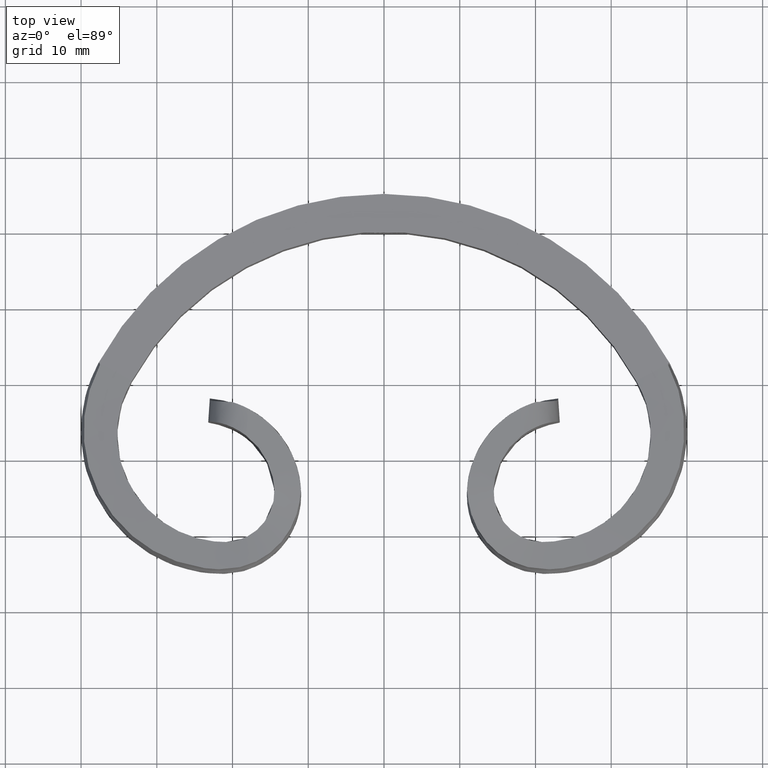
[diagram: clean part render]
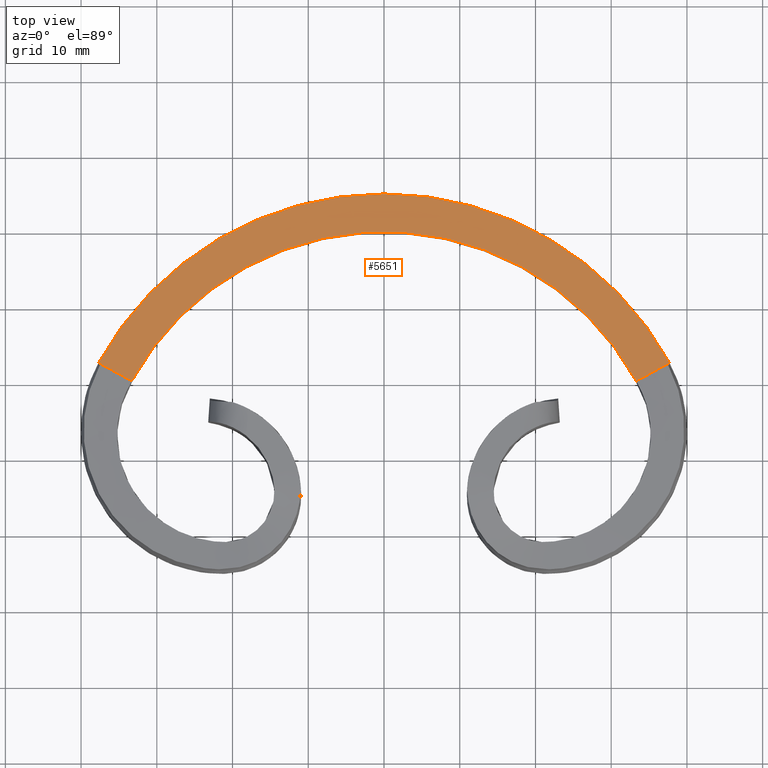
[diagram: same view with one face highlighted and labeled with its STEP entity id]
A machine part, top view. The second image highlights one B-rep face of the part: STEP entity #5651.
In plain terms, the highlighted planar face has unit normal (-0, 0, -1).
Its self-contained STEP definition (entity closure, byte-faithful):
#404 = CARTESIAN_POINT ( 'NONE',  ( -6.309924276795900825E-27, -17.99999999999999645, 6.000000000000000000 ) ) ;
#450 = VERTEX_POINT ( 'NONE', #9655 ) ;
#576 = DIRECTION ( 'NONE',  ( 0.8765587621685080322, -0.4812948539779050572, 3.469446951953613696E-16 ) ) ;
#703 = ORIENTED_EDGE ( 'NONE', *, *, #17137, .F. ) ;
#1033 = CARTESIAN_POINT ( 'NONE',  ( -37.63557457080444379, 2.672687015396279619, 6.000000000000001776 ) ) ;
#1154 = CARTESIAN_POINT ( 'NONE',  ( -33.30923296240330700, 0.2892044511603958923, 6.000000000000001776 ) ) ;
#1296 = EDGE_LOOP ( 'NONE', ( #12191, #14291, #16915, #4732, #14012, #14211, #10297, #703 ) ) ;
#1407 = CARTESIAN_POINT ( 'NONE',  ( -6.309924276795900825E-27, -17.99999999999999645, 6.000000000000001776 ) ) ;
#2259 = CARTESIAN_POINT ( 'NONE',  ( -16.08719172690877386, -7.872645241036678065, 6.000000000000000888 ) ) ;
#2386 = EDGE_CURVE ( 'NONE', #6521, #16668, #14050, .T. ) ;
#2579 = EDGE_CURVE ( 'NONE', #7389, #11345, #14552, .T. ) ;
#3385 = EDGE_CURVE ( 'NONE', #450, #8007, #4319, .T. ) ;
#3925 = EDGE_CURVE ( 'NONE', #16668, #13998, #9329, .T. ) ;
#3938 = CARTESIAN_POINT ( 'NONE',  ( -37.61627604079752274, 2.659793157594103175, 6.000000000000000888 ) ) ;
#4067 = DIRECTION ( 'NONE',  ( 1.660506388630500323E-28, 1.000000000000000000, 0.000000000000000000 ) ) ;
#4319 = CIRCLE ( 'NONE', #9024, 43.00000000000000000 ) ;
#4546 = EDGE_CURVE ( 'NONE', #15139, #7389, #5820, .T. ) ;
#4732 = ORIENTED_EDGE ( 'NONE', *, *, #2579, .T. ) ;
#4981 = FACE_OUTER_BOUND ( 'NONE', #1296, .T. ) ;
#5463 = CARTESIAN_POINT ( 'NONE',  ( 37.69202677324584272, 2.695678721049922899, 6.000000000000000000 ) ) ;
#5651 = ADVANCED_FACE ( 'NONE', ( #4981 ), #7362, .F. ) ;
#5820 = B_SPLINE_CURVE_WITH_KNOTS ( 'NONE', 3,
 ( #9251, #1033, #3938, #9810 ),
 .UNSPECIFIED., .F., .F.,
 ( 4, 4 ),
 ( 0.000000000000000000, 6.840030241147862619E-05 ),
 .UNSPECIFIED. ) ;
#6042 = CARTESIAN_POINT ( 'NONE',  ( 0.000000000000000000, 25.00000000000000355, 6.000000000000000888 ) ) ;
#6384 = CARTESIAN_POINT ( 'NONE',  ( -37.69002071778236740, 2.699331832045591462, 6.000000000000000000 ) ) ;
#6521 = VERTEX_POINT ( 'NONE', #13831 ) ;
#6531 = VECTOR ( 'NONE', #10854, 1000.000000000000114 ) ;
#7023 = VECTOR ( 'NONE', #576, 1000.000000000000000 ) ;
#7362 = PLANE ( 'NONE',  #13918 ) ;
#7389 = VERTEX_POINT ( 'NONE', #10454 ) ;
#7535 = VECTOR ( 'NONE', #11388, 1000.000000000000000 ) ;
#7854 = CARTESIAN_POINT ( 'NONE',  ( 37.59918516124347576, 2.644701887527421746, 6.000000000000000000 ) ) ;
#8007 = VERTEX_POINT ( 'NONE', #6384 ) ;
#8134 = CARTESIAN_POINT ( 'NONE',  ( 16.08719172690877386, -7.872645241036678065, 6.000000000000000888 ) ) ;
#8679 = DIRECTION ( 'NONE',  ( -0.000000000000000000, 0.000000000000000000, -1.000000000000000000 ) ) ;
#8733 = CARTESIAN_POINT ( 'NONE',  ( -37.69202677324584272, 2.695678721049922899, 6.000000000000000000 ) ) ;
#8796 = DIRECTION ( 'NONE',  ( -1.000000000000000000, 0.000000000000000000, 0.000000000000000000 ) ) ;
#9024 = AXIS2_PLACEMENT_3D ( 'NONE', #404, #14809, #11858 ) ;
#9251 = CARTESIAN_POINT ( 'NONE',  ( -37.65605386041944058, 2.682709155569411585, 6.000000000000000888 ) ) ;
#9329 = LINE ( 'NONE', #5463, #7535 ) ;
#9348 = CARTESIAN_POINT ( 'NONE',  ( 37.65605386041944058, 2.682709155569411585, 6.000000000000000888 ) ) ;
#9404 = CARTESIAN_POINT ( 'NONE',  ( 37.59918516124347576, 2.644701887527421746, 6.000000000000000000 ) ) ;
#9655 = CARTESIAN_POINT ( 'NONE',  ( 37.69002071778236740, 2.699331832045591462, 6.000000000000000000 ) ) ;
#9810 = CARTESIAN_POINT ( 'NONE',  ( -37.59918516124347576, 2.644701887527421746, 6.000000000000000000 ) ) ;
#10297 = ORIENTED_EDGE ( 'NONE', *, *, #2386, .F. ) ;
#10309 = LINE ( 'NONE', #8134, #6531 ) ;
#10454 = CARTESIAN_POINT ( 'NONE',  ( -37.59918516124347576, 2.644701887527421746, 6.000000000000000000 ) ) ;
#10854 = DIRECTION ( 'NONE',  ( -0.8982104855076903371, -0.4395656079859285859, 0.000000000000000000 ) ) ;
#11246 = DIRECTION ( 'NONE',  ( 0.000000000000000000, 0.000000000000000000, 1.000000000000000000 ) ) ;
#11345 = VERTEX_POINT ( 'NONE', #1154 ) ;
#11388 = DIRECTION ( 'NONE',  ( -0.8765587621685080322, -0.4812948539779050572, 3.469446951953613696E-16 ) ) ;
#11858 = DIRECTION ( 'NONE',  ( 1.467424250417651256E-28, 1.000000000000000000, 0.000000000000000000 ) ) ;
#12091 = LINE ( 'NONE', #2259, #16714 ) ;
#12191 = ORIENTED_EDGE ( 'NONE', *, *, #3385, .T. ) ;
#12196 = CARTESIAN_POINT ( 'NONE',  ( 37.61627604079752274, 2.659793157594103175, 6.000000000000000888 ) ) ;
#12214 = DIRECTION ( 'NONE',  ( 0.8982104855076903371, -0.4395656079859285859, 0.000000000000000000 ) ) ;
#12456 = EDGE_CURVE ( 'NONE', #13998, #11345, #13149, .T. ) ;
#12836 = CARTESIAN_POINT ( 'NONE',  ( -37.65605386041944058, 2.682709155569411585, 6.000000000000000888 ) ) ;
#12915 = AXIS2_PLACEMENT_3D ( 'NONE', #1407, #11246, #4067 ) ;
#12950 = CARTESIAN_POINT ( 'NONE',  ( 33.30923296240330700, 0.2892044511603958923, 6.000000000000001776 ) ) ;
#13149 = CIRCLE ( 'NONE', #12915, 38.00000000000000000 ) ;
#13831 = CARTESIAN_POINT ( 'NONE',  ( 37.65605386041944058, 2.682709155569411585, 6.000000000000000888 ) ) ;
#13918 = AXIS2_PLACEMENT_3D ( 'NONE', #6042, #8679, #8796 ) ;
#13998 = VERTEX_POINT ( 'NONE', #12950 ) ;
#14012 = ORIENTED_EDGE ( 'NONE', *, *, #12456, .F. ) ;
#14050 = B_SPLINE_CURVE_WITH_KNOTS ( 'NONE', 3,
 ( #9348, #14901, #12196, #7854 ),
 .UNSPECIFIED., .F., .F.,
 ( 4, 4 ),
 ( 0.000000000000000000, 6.840030241147862619E-05 ),
 .UNSPECIFIED. ) ;
#14211 = ORIENTED_EDGE ( 'NONE', *, *, #3925, .F. ) ;
#14291 = ORIENTED_EDGE ( 'NONE', *, *, #14939, .T. ) ;
#14552 = LINE ( 'NONE', #8733, #7023 ) ;
#14809 = DIRECTION ( 'NONE',  ( 0.000000000000000000, 0.000000000000000000, 1.000000000000000000 ) ) ;
#14901 = CARTESIAN_POINT ( 'NONE',  ( 37.63557457080444379, 2.672687015396279619, 6.000000000000001776 ) ) ;
#14939 = EDGE_CURVE ( 'NONE', #8007, #15139, #12091, .T. ) ;
#15139 = VERTEX_POINT ( 'NONE', #12836 ) ;
#16668 = VERTEX_POINT ( 'NONE', #9404 ) ;
#16714 = VECTOR ( 'NONE', #12214, 1000.000000000000114 ) ;
#16915 = ORIENTED_EDGE ( 'NONE', *, *, #4546, .T. ) ;
#17137 = EDGE_CURVE ( 'NONE', #450, #6521, #10309, .T. ) ;